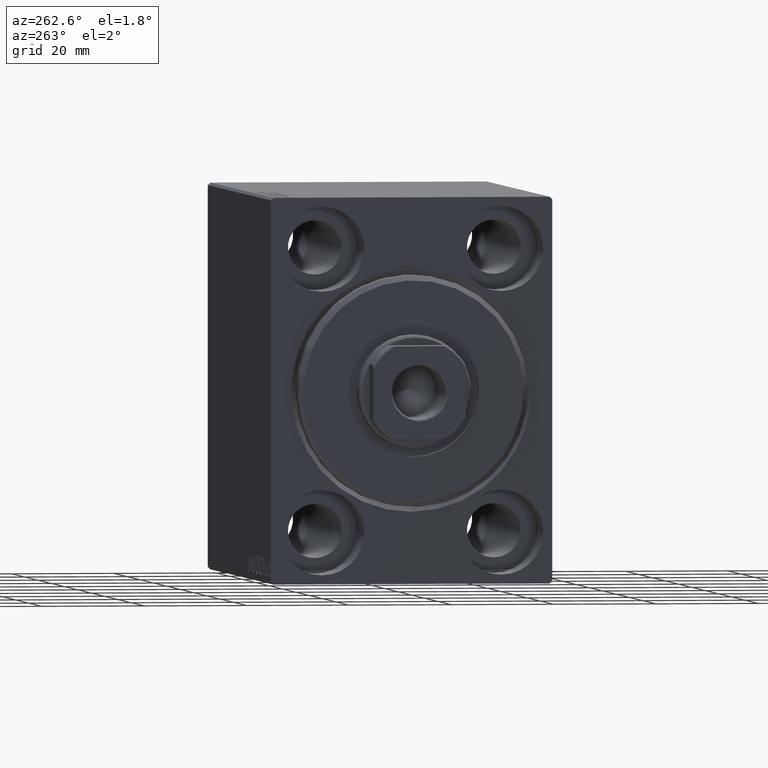
[diagram: clean part render]
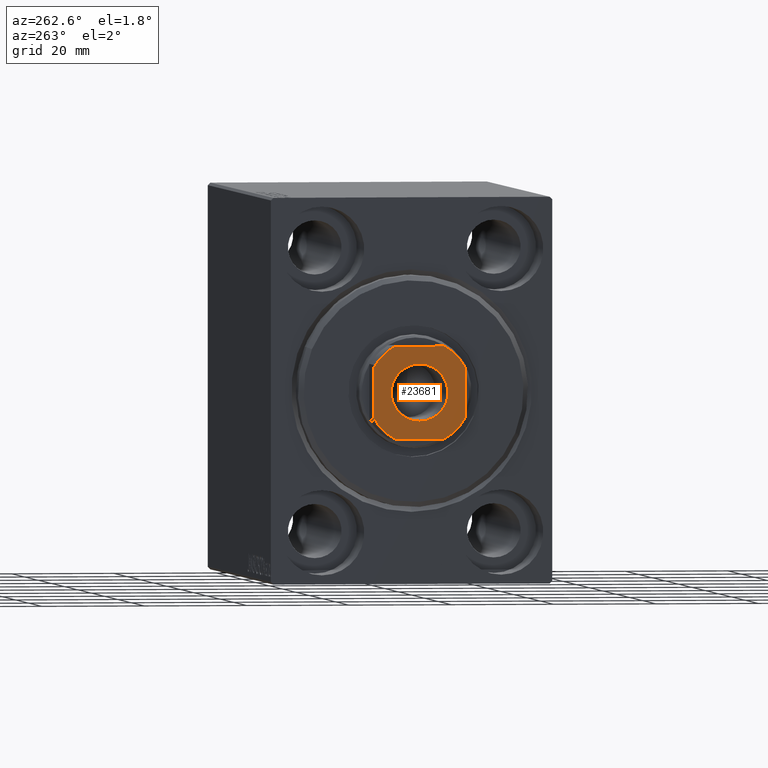
[diagram: same view with one face highlighted and labeled with its STEP entity id]
A machine part, auxiliary view. The second image highlights one B-rep face of the part: STEP entity #23681.
In plain terms, the highlighted planar face has unit normal (-1, 0, 0).
Its self-contained STEP definition (entity closure, byte-faithful):
#512 = AXIS2_PLACEMENT_3D ( 'NONE', #19870, #40163, #23171 ) ;
#733 = DIRECTION ( 'NONE',  ( -1.000000000000000000, -0.000000000000000000, -0.000000000000000000 ) ) ;
#1075 = VERTEX_POINT ( 'NONE', #12166 ) ;
#1227 = CARTESIAN_POINT ( 'NONE',  ( -9.000000000000001776, 4.800000000000018474, 97.00000000000000000 ) ) ;
#1612 = VECTOR ( 'NONE', #24607, 1000.000000000000000 ) ;
#1784 = CARTESIAN_POINT ( 'NONE',  ( 0.000000000000000000, 0.000000000000000000, 97.00000000000000000 ) ) ;
#2318 = DIRECTION ( 'NONE',  ( 1.000000000000000000, 0.000000000000000000, 0.000000000000000000 ) ) ;
#2896 = DIRECTION ( 'NONE',  ( -0.000000000000000000, 0.000000000000000000, 1.000000000000000000 ) ) ;
#2931 = DIRECTION ( 'NONE',  ( -0.000000000000000000, 0.000000000000000000, 1.000000000000000000 ) ) ;
#3152 = DIRECTION ( 'NONE',  ( 1.000000000000000000, 0.000000000000000000, 0.000000000000000000 ) ) ;
#3772 = CARTESIAN_POINT ( 'NONE',  ( 4.799999999999967848, -9.000000000000001776, 97.00000000000000000 ) ) ;
#3875 = ORIENTED_EDGE ( 'NONE', *, *, #35007, .T. ) ;
#4753 = CARTESIAN_POINT ( 'NONE',  ( 0.000000000000000000, 0.000000000000000000, 97.00000000000000000 ) ) ;
#4844 = EDGE_CURVE ( 'NONE', #17153, #8354, #24384, .T. ) ;
#6254 = EDGE_CURVE ( 'NONE', #28108, #1075, #35384, .T. ) ;
#6611 = CARTESIAN_POINT ( 'NONE',  ( 0.000000000000000000, 0.000000000000000000, 97.00000000000000000 ) ) ;
#6917 = LINE ( 'NONE', #20329, #36185 ) ;
#7288 = DIRECTION ( 'NONE',  ( 1.000000000000000000, 0.000000000000000000, 0.000000000000000000 ) ) ;
#7756 = DIRECTION ( 'NONE',  ( -1.927470528863119049E-16, 1.000000000000000000, -0.000000000000000000 ) ) ;
#7775 = CARTESIAN_POINT ( 'NONE',  ( -9.000000000000001776, 8.999999999999998224, 97.00000000000000000 ) ) ;
#8048 = VERTEX_POINT ( 'NONE', #40460 ) ;
#8058 = FACE_BOUND ( 'NONE', #15827, .T. ) ;
#8116 = AXIS2_PLACEMENT_3D ( 'NONE', #12818, #2896, #39704 ) ;
#8219 = ORIENTED_EDGE ( 'NONE', *, *, #4844, .T. ) ;
#8282 = FACE_OUTER_BOUND ( 'NONE', #23075, .T. ) ;
#8354 = VERTEX_POINT ( 'NONE', #27142 ) ;
#9149 = EDGE_CURVE ( 'NONE', #1075, #20496, #34000, .T. ) ;
#10561 = ORIENTED_EDGE ( 'NONE', *, *, #6254, .T. ) ;
#11431 = CARTESIAN_POINT ( 'NONE',  ( -5.549999999999998934, 6.796789735267809794E-16, 97.00000000000000000 ) ) ;
#11563 = CARTESIAN_POINT ( 'NONE',  ( -4.799999999999956302, -9.000000000000001776, 97.00000000000000000 ) ) ;
#12166 = CARTESIAN_POINT ( 'NONE',  ( 4.799999999999967848, 8.999999999999998224, 97.00000000000000000 ) ) ;
#12818 = CARTESIAN_POINT ( 'NONE',  ( 0.000000000000000000, 0.000000000000000000, 97.00000000000000000 ) ) ;
#12948 = EDGE_CURVE ( 'NONE', #20496, #17153, #34155, .T. ) ;
#13432 = ORIENTED_EDGE ( 'NONE', *, *, #23258, .T. ) ;
#13751 = AXIS2_PLACEMENT_3D ( 'NONE', #6611, #33053, #23116 ) ;
#14510 = CARTESIAN_POINT ( 'NONE',  ( -9.000000000000001776, 8.999999999999998224, 97.00000000000000000 ) ) ;
#15225 = DIRECTION ( 'NONE',  ( -0.000000000000000000, 0.000000000000000000, 1.000000000000000000 ) ) ;
#15762 = DIRECTION ( 'NONE',  ( -0.000000000000000000, 0.000000000000000000, 1.000000000000000000 ) ) ;
#15827 = EDGE_LOOP ( 'NONE', ( #13432, #31792 ) ) ;
#16285 = AXIS2_PLACEMENT_3D ( 'NONE', #17207, #30430, #7288 ) ;
#16424 = AXIS2_PLACEMENT_3D ( 'NONE', #1784, #15225, #22466 ) ;
#17153 = VERTEX_POINT ( 'NONE', #1227 ) ;
#17207 = CARTESIAN_POINT ( 'NONE',  ( 0.000000000000000000, 0.000000000000000000, 97.00000000000000000 ) ) ;
#17208 = VERTEX_POINT ( 'NONE', #11563 ) ;
#19448 = EDGE_CURVE ( 'NONE', #8354, #17208, #22918, .T. ) ;
#19504 = CIRCLE ( 'NONE', #512, 5.549999999999998934 ) ;
#19870 = CARTESIAN_POINT ( 'NONE',  ( 0.000000000000000000, 0.000000000000000000, 97.00000000000000000 ) ) ;
#20329 = CARTESIAN_POINT ( 'NONE',  ( -8.999999999999998224, -9.000000000000001776, 97.00000000000000000 ) ) ;
#20496 = VERTEX_POINT ( 'NONE', #39921 ) ;
#21611 = LINE ( 'NONE', #35072, #39684 ) ;
#22466 = DIRECTION ( 'NONE',  ( 1.000000000000000000, 0.000000000000000000, 0.000000000000000000 ) ) ;
#22918 = CIRCLE ( 'NONE', #34217, 10.19999999999997975 ) ;
#23075 = EDGE_LOOP ( 'NONE', ( #32546, #10561, #41166, #27270, #8219, #41674, #3875, #25694 ) ) ;
#23116 = DIRECTION ( 'NONE',  ( 1.000000000000000000, 0.000000000000000000, 0.000000000000000000 ) ) ;
#23171 = DIRECTION ( 'NONE',  ( 1.000000000000000000, 0.000000000000000000, 0.000000000000000000 ) ) ;
#23258 = EDGE_CURVE ( 'NONE', #8048, #40876, #19504, .T. ) ;
#23681 = ADVANCED_FACE ( 'NONE', ( #8058, #8282 ), #34943, .T. ) ;
#24103 = VERTEX_POINT ( 'NONE', #33551 ) ;
#24384 = LINE ( 'NONE', #14510, #1612 ) ;
#24607 = DIRECTION ( 'NONE',  ( 1.927470528863119049E-16, -1.000000000000000000, 0.000000000000000000 ) ) ;
#25694 = ORIENTED_EDGE ( 'NONE', *, *, #30363, .T. ) ;
#26302 = VECTOR ( 'NONE', #733, 1000.000000000000000 ) ;
#27142 = CARTESIAN_POINT ( 'NONE',  ( -8.999999999999998224, -4.799999999999960743, 97.00000000000000000 ) ) ;
#27270 = ORIENTED_EDGE ( 'NONE', *, *, #12948, .T. ) ;
#28108 = VERTEX_POINT ( 'NONE', #42817 ) ;
#30363 = EDGE_CURVE ( 'NONE', #30397, #24103, #36664, .T. ) ;
#30397 = VERTEX_POINT ( 'NONE', #3772 ) ;
#30430 = DIRECTION ( 'NONE',  ( -0.000000000000000000, 0.000000000000000000, 1.000000000000000000 ) ) ;
#31483 = AXIS2_PLACEMENT_3D ( 'NONE', #4753, #15762, #2318 ) ;
#31792 = ORIENTED_EDGE ( 'NONE', *, *, #39119, .T. ) ;
#32546 = ORIENTED_EDGE ( 'NONE', *, *, #32974, .T. ) ;
#32928 = DIRECTION ( 'NONE',  ( 1.000000000000000000, 0.000000000000000000, 0.000000000000000000 ) ) ;
#32974 = EDGE_CURVE ( 'NONE', #24103, #28108, #21611, .T. ) ;
#33053 = DIRECTION ( 'NONE',  ( 0.000000000000000000, -0.000000000000000000, -1.000000000000000000 ) ) ;
#33113 = CARTESIAN_POINT ( 'NONE',  ( 0.000000000000000000, 0.000000000000000000, 97.00000000000000000 ) ) ;
#33551 = CARTESIAN_POINT ( 'NONE',  ( 9.000000000000001776, -4.799999999999967848, 97.00000000000000000 ) ) ;
#34000 = LINE ( 'NONE', #7775, #26302 ) ;
#34155 = CIRCLE ( 'NONE', #8116, 10.20000000000000995 ) ;
#34217 = AXIS2_PLACEMENT_3D ( 'NONE', #33113, #2931, #3152 ) ;
#34943 = PLANE ( 'NONE',  #31483 ) ;
#35007 = EDGE_CURVE ( 'NONE', #17208, #30397, #6917, .T. ) ;
#35072 = CARTESIAN_POINT ( 'NONE',  ( 8.999999999999998224, 8.999999999999998224, 97.00000000000000000 ) ) ;
#35384 = CIRCLE ( 'NONE', #16424, 10.19999999999998330 ) ;
#36185 = VECTOR ( 'NONE', #32928, 1000.000000000000000 ) ;
#36274 = CIRCLE ( 'NONE', #13751, 5.549999999999998934 ) ;
#36664 = CIRCLE ( 'NONE', #16285, 10.19999999999998508 ) ;
#39119 = EDGE_CURVE ( 'NONE', #40876, #8048, #36274, .T. ) ;
#39684 = VECTOR ( 'NONE', #7756, 1000.000000000000000 ) ;
#39704 = DIRECTION ( 'NONE',  ( 1.000000000000000000, 0.000000000000000000, 0.000000000000000000 ) ) ;
#39921 = CARTESIAN_POINT ( 'NONE',  ( -4.800000000000023803, 8.999999999999998224, 97.00000000000000000 ) ) ;
#40163 = DIRECTION ( 'NONE',  ( 0.000000000000000000, -0.000000000000000000, -1.000000000000000000 ) ) ;
#40460 = CARTESIAN_POINT ( 'NONE',  ( 5.549999999999998934, 0.000000000000000000, 97.00000000000000000 ) ) ;
#40876 = VERTEX_POINT ( 'NONE', #11431 ) ;
#41166 = ORIENTED_EDGE ( 'NONE', *, *, #9149, .T. ) ;
#41674 = ORIENTED_EDGE ( 'NONE', *, *, #19448, .T. ) ;
#42817 = CARTESIAN_POINT ( 'NONE',  ( 8.999999999999998224, 4.799999999999967848, 97.00000000000000000 ) ) ;